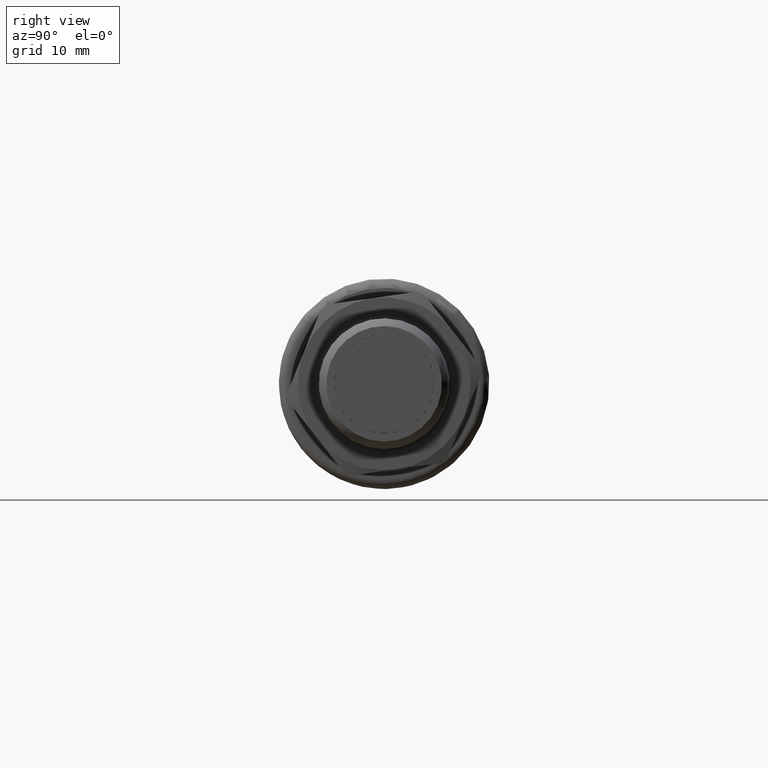
[diagram: clean part render]
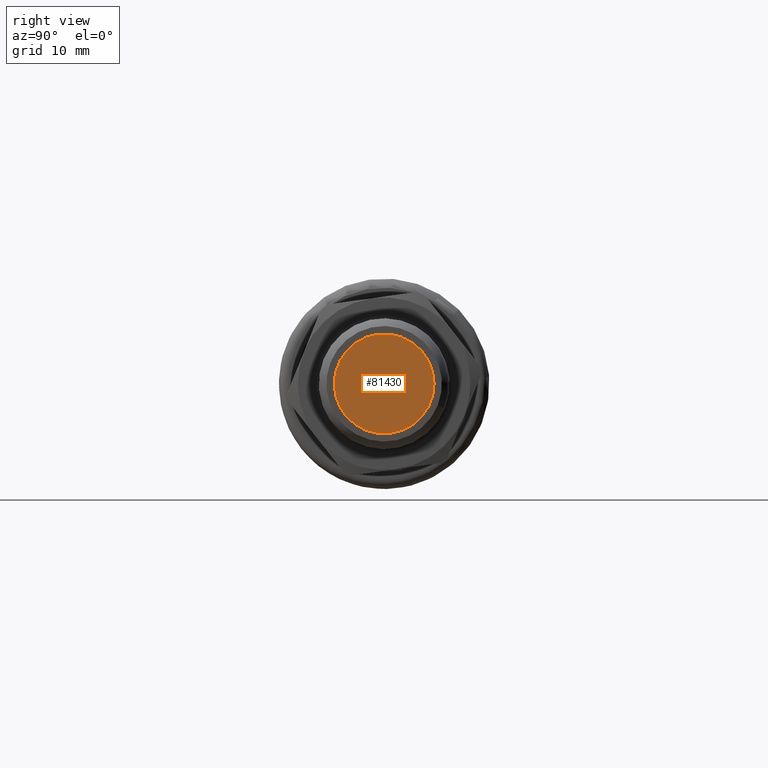
[diagram: same view with one face highlighted and labeled with its STEP entity id]
A machine part, right view. The second image highlights one B-rep face of the part: STEP entity #81430.
In plain terms, the highlighted planar face has unit normal (1, 0, 0).
Its self-contained STEP definition (entity closure, byte-faithful):
#81407=CARTESIAN_POINT('',(73.5,5.490543060570107,0.0));
#81408=VERTEX_POINT('',#81407);
#81409=CARTESIAN_POINT('',(73.5,0.0,0.0));
#81410=DIRECTION('',(1.0,0.0,0.0));
#81411=DIRECTION('',(0.0,1.0,0.0));
#81412=AXIS2_PLACEMENT_3D('',#81409,#81410,#81411);
#81413=CIRCLE('',#81412,5.490543060570107);
#81414=EDGE_CURVE('',#81408,#81408,#81413,.T.);
#81422=CARTESIAN_POINT('',(73.5,2.745271530285053,0.0));
#81423=DIRECTION('',(1.0,0.0,0.0));
#81424=DIRECTION('',(0.0,0.0,-1.0));
#81425=AXIS2_PLACEMENT_3D('',#81422,#81423,#81424);
#81426=PLANE('',#81425);
#81427=ORIENTED_EDGE('',*,*,#81414,.T.);
#81428=EDGE_LOOP('',(#81427));
#81429=FACE_OUTER_BOUND('',#81428,.T.);
#81430=ADVANCED_FACE('',(#81429),#81426,.T.);